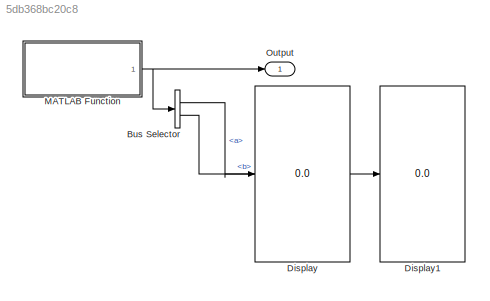
MODEL slx_5db368bc20c8
KIND model
CONFIG AbsTol = auto
CONFIG EnableMultiTasking = off
CONFIG FixedStep = auto
CONFIG MaxStep = auto
CONFIG MinStep = auto
CONFIG RelTol = 1e-3
CONFIG SampleTimeConstraint = Unconstrained
CONFIG Solver = VariableStepAuto
CONFIG SolverName = VariableStepAuto
CONFIG StartTime = 0.0
CONFIG StopTime = inf
BLOCK [BusSelector] Bus Selector
  OutputAsBus = off
  OutputSignals = a,b
  Ports = [1, 2]
BLOCK [Display] Display
  Decimation = 1
  Ports = [1]
BLOCK [Display] Display1
  Decimation = 1
  Ports = [1]
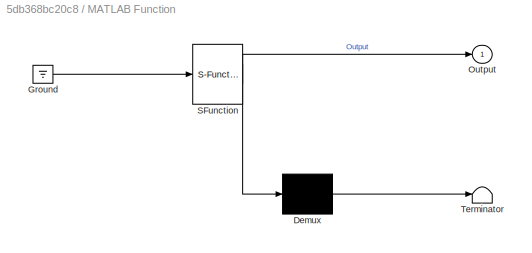
BLOCK [SubSystem] MATLAB Function
  ErrorFcn = Stateflow.Translate.translate
  PermitHierarchicalResolution = ExplicitOnly
  Ports = [0, 1]
  RequestExecContextInheritance = off
  SFBlockType = MATLAB Function
  TreatAsAtomicUnit = on
BLOCK [Demux] MATLAB Function/ Demux 
  Outputs = 1
  Ports = [1, 1]
BLOCK [Ground] MATLAB Function/ Ground 
BLOCK [S-Function] MATLAB Function/ SFunction 
  EnableBusSupport = on
  FunctionName = sf_sfun
  PortCounts = [1 2]
  Ports = [1, 2]
  SFcnIsStateOwnerBlock = off
  SFunctionDeploymentMode = off
  Tag = Stateflow S-Function 2
BLOCK [Terminator] MATLAB Function/ Terminator 
BLOCK [Outport] MATLAB Function/Output
  IconDisplay = Port number
BLOCK [Outport] Output
  IconDisplay = Port number
  OutDataTypeStr = Bus: struct
LINE Bus Selector:1 -> Display:1
LINE Bus Selector:2 -> Display1:1
NET MATLAB Function:1 -> Bus Selector:1, Output:1
note: NET lines group one-source signal fan-out (src -> all destinations, sorted); 1:1 wires keep LINE
CHART MATLAB Function states=1 transitions=1
  STATE_LABEL 'eML_blk_kernel()'
  STATE_LABEL "SCRIPT:\nfunction Output = fcn()\n    y = ones(500,2);\n    Output = transition_to_BUS(y);\n\n% y = [1,2,3;4,5,6]';\n% Output.a = y(:,1);\n% Output.b = y(:,2);\n\nend\n    \nfunction Output = transition_to_BUS(output)\n    \n    if isempty(output)\n        output = zeros(500,2);\n    else\n        size_of_out = length(output);\n        if size_of_out <= 500\n            output = [output; zeros((500 - size_of_out),2...<+231ch>"
